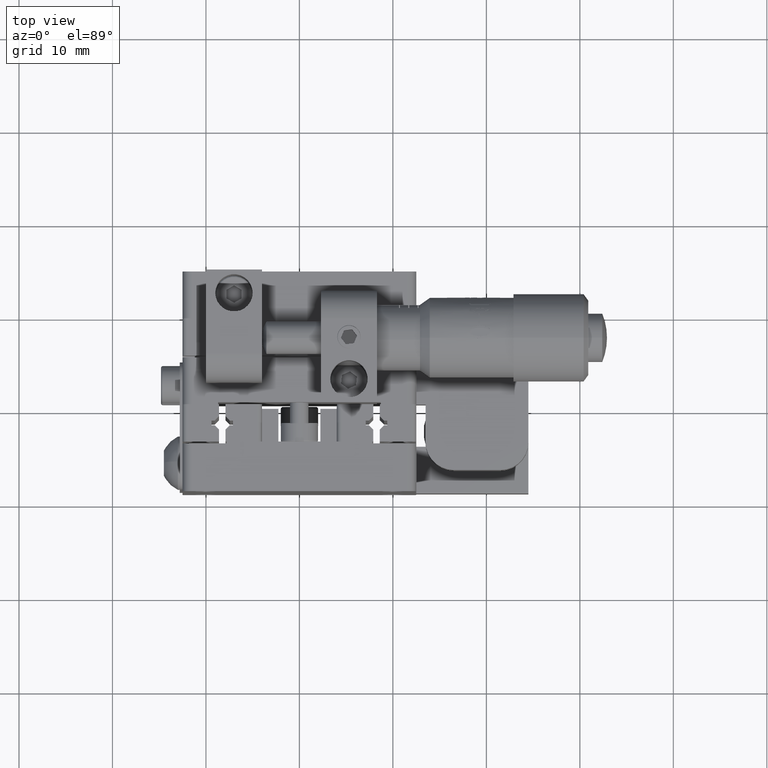
[diagram: clean part render]
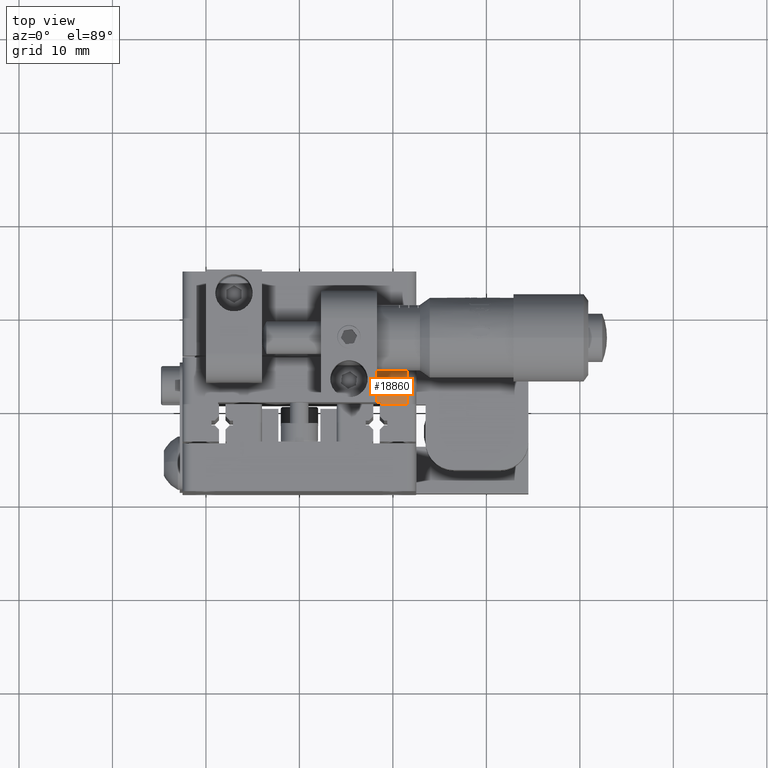
[diagram: same view with one face highlighted and labeled with its STEP entity id]
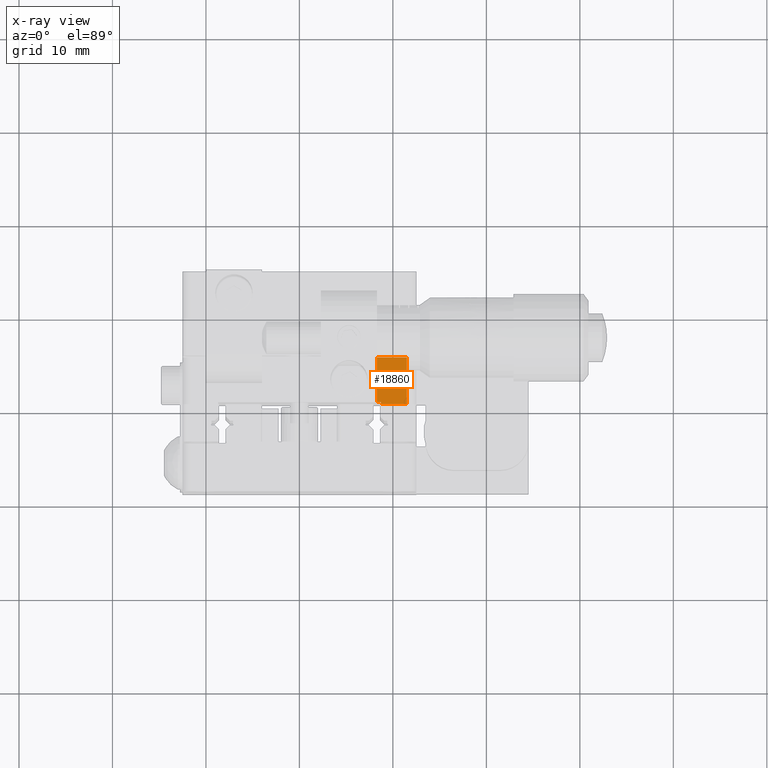
[diagram: x-ray of the same camera — body ghosted, the highlighted face saturated]
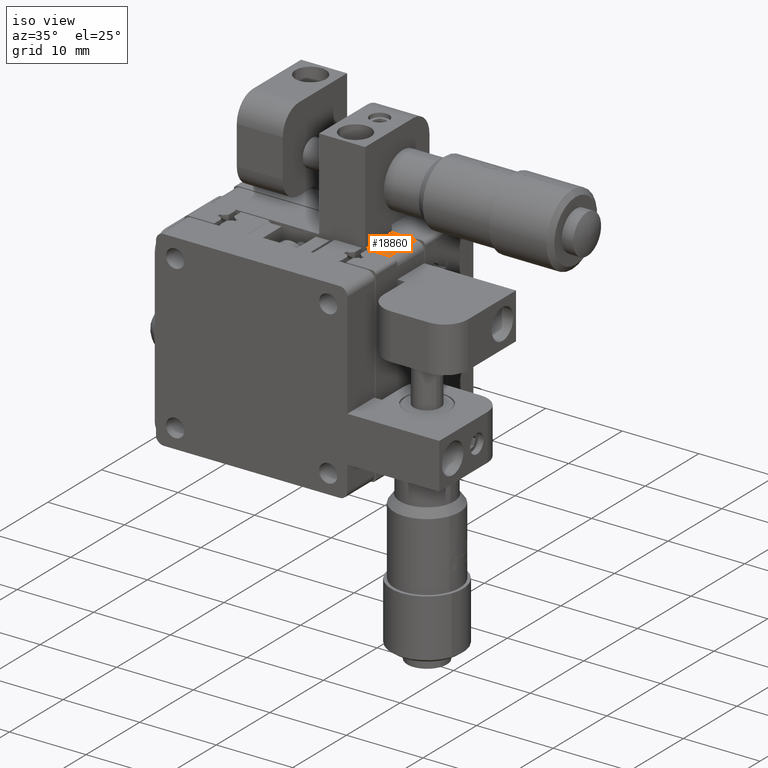
[diagram: same view with one face highlighted and labeled with its STEP entity id]
A machine part, top view. The second image highlights one B-rep face of the part: STEP entity #18860.
The next image is the same camera in x-ray: the body ghosted, the highlighted face saturated — about 0% of this face is hidden behind the body in this view.
A second angle (iso view) of the same face is appended — the face is thin or edge-on in the first view.
In plain terms, the highlighted planar face has unit normal (0, -0, 1).
Its self-contained STEP definition (entity closure, byte-faithful):
#3571 = VERTEX_POINT ( 'NONE', #17660 ) ;
#4959 = CARTESIAN_POINT ( 'NONE',  ( 5.242117503967413900E-014, 2.699999999999996200, 12.49999999999999500 ) ) ;
#7227 = CARTESIAN_POINT ( 'NONE',  ( 8.700000000000050800, 0.1999999999999940200, 12.49999999999999500 ) ) ;
#9074 = VERTEX_POINT ( 'NONE', #33905 ) ;
#9413 = ORIENTED_EDGE ( 'NONE', *, *, #40267, .T. ) ;
#9560 = DIRECTION ( 'NONE',  ( 0.0000000000000000000, 1.000000000000000000, 0.0000000000000000000 ) ) ;
#9667 = VECTOR ( 'NONE', #51772, 1000.000000000000000 ) ;
#10634 = CARTESIAN_POINT ( 'NONE',  ( 8.700000000000050800, 0.3999999999999936900, 12.49999999999999500 ) ) ;
#10936 = CARTESIAN_POINT ( 'NONE',  ( 11.50000000000005900, 5.199999999999998400, 12.49999999999999500 ) ) ;
#14734 = VECTOR ( 'NONE', #35433, 1000.000000000000000 ) ;
#15381 = VERTEX_POINT ( 'NONE', #7227 ) ;
#16607 = VECTOR ( 'NONE', #63207, 1000.000000000000000 ) ;
#17660 = CARTESIAN_POINT ( 'NONE',  ( 8.300000000000057600, 0.3999999999999936900, 12.49999999999999500 ) ) ;
#18855 = CARTESIAN_POINT ( 'NONE',  ( 12.50000000000005900, 0.1999999999999974900, 12.49999999999999500 ) ) ;
#18860 = ADVANCED_FACE ( 'NONE', ( #34661 ), #50189, .T. ) ;
#20086 = EDGE_CURVE ( 'NONE', #15381, #9074, #78528, .T. ) ;
#20902 = DIRECTION ( 'NONE',  ( 1.000000000000000000, 0.0000000000000000000, -0.0000000000000000000 ) ) ;
#24054 = EDGE_CURVE ( 'NONE', #3571, #95605, #90065, .T. ) ;
#28270 = EDGE_CURVE ( 'NONE', #93699, #3571, #61887, .T. ) ;
#31873 = VECTOR ( 'NONE', #9560, 1000.000000000000000 ) ;
#33905 = CARTESIAN_POINT ( 'NONE',  ( 11.50000000000005900, 0.1999999999999974900, 12.49999999999999500 ) ) ;
#34661 = FACE_OUTER_BOUND ( 'NONE', #76272, .T. ) ;
#35433 = DIRECTION ( 'NONE',  ( -1.000000000000000000, -1.387778780781445700E-016, 0.0000000000000000000 ) ) ;
#40267 = EDGE_CURVE ( 'NONE', #67915, #95605, #92516, .T. ) ;
#42431 = VECTOR ( 'NONE', #84494, 1000.000000000000000 ) ;
#42889 = EDGE_CURVE ( 'NONE', #9074, #67915, #61976, .T. ) ;
#43067 = ORIENTED_EDGE ( 'NONE', *, *, #68390, .F. ) ;
#43513 = CARTESIAN_POINT ( 'NONE',  ( 12.50000000000005900, 5.199999999999998400, 12.49999999999999500 ) ) ;
#46333 = CARTESIAN_POINT ( 'NONE',  ( 11.50000000000005900, 5.199999999999998400, 12.49999999999999500 ) ) ;
#48707 = ORIENTED_EDGE ( 'NONE', *, *, #42889, .T. ) ;
#50189 = PLANE ( 'NONE',  #64387 ) ;
#51210 = CARTESIAN_POINT ( 'NONE',  ( 8.700000000000050800, 0.3999999999999936900, 12.49999999999999500 ) ) ;
#51772 = DIRECTION ( 'NONE',  ( 0.0000000000000000000, 1.000000000000000000, 0.0000000000000000000 ) ) ;
#54761 = ORIENTED_EDGE ( 'NONE', *, *, #20086, .T. ) ;
#57618 = DIRECTION ( 'NONE',  ( 0.0000000000000000000, -0.0000000000000000000, 1.000000000000000000 ) ) ;
#61887 = LINE ( 'NONE', #10634, #16607 ) ;
#61976 = LINE ( 'NONE', #46333, #31873 ) ;
#63207 = DIRECTION ( 'NONE',  ( -1.000000000000000000, 0.0000000000000000000, 0.0000000000000000000 ) ) ;
#64347 = ORIENTED_EDGE ( 'NONE', *, *, #28270, .F. ) ;
#64387 = AXIS2_PLACEMENT_3D ( 'NONE', #4959, #57618, #20902 ) ;
#65633 = CARTESIAN_POINT ( 'NONE',  ( 8.700000000000050800, -6.071532165918824800E-015, 12.49999999999999500 ) ) ;
#67915 = VERTEX_POINT ( 'NONE', #10936 ) ;
#68390 = EDGE_CURVE ( 'NONE', #15381, #93699, #95670, .T. ) ;
#70432 = CARTESIAN_POINT ( 'NONE',  ( 8.300000000000057600, 5.199999999999998400, 12.49999999999999500 ) ) ;
#72761 = VECTOR ( 'NONE', #78904, 1000.000000000000000 ) ;
#76272 = EDGE_LOOP ( 'NONE', ( #88954, #64347, #43067, #54761, #48707, #9413 ) ) ;
#78528 = LINE ( 'NONE', #18855, #72761 ) ;
#78904 = DIRECTION ( 'NONE',  ( 1.000000000000000000, 1.387778780781445700E-016, -0.0000000000000000000 ) ) ;
#82319 = CARTESIAN_POINT ( 'NONE',  ( 8.300000000000057600, 5.199999999999998400, 12.49999999999999500 ) ) ;
#84494 = DIRECTION ( 'NONE',  ( -0.0000000000000000000, 1.000000000000000000, -0.0000000000000000000 ) ) ;
#88954 = ORIENTED_EDGE ( 'NONE', *, *, #24054, .F. ) ;
#90065 = LINE ( 'NONE', #70432, #42431 ) ;
#92516 = LINE ( 'NONE', #43513, #14734 ) ;
#93699 = VERTEX_POINT ( 'NONE', #51210 ) ;
#95605 = VERTEX_POINT ( 'NONE', #82319 ) ;
#95670 = LINE ( 'NONE', #65633, #9667 ) ;